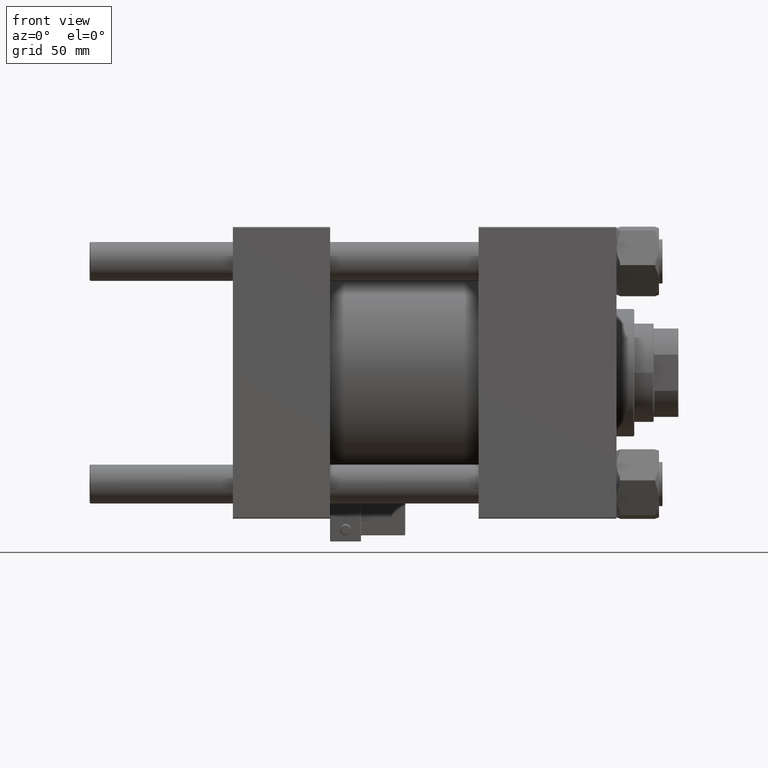
[diagram: clean part render]
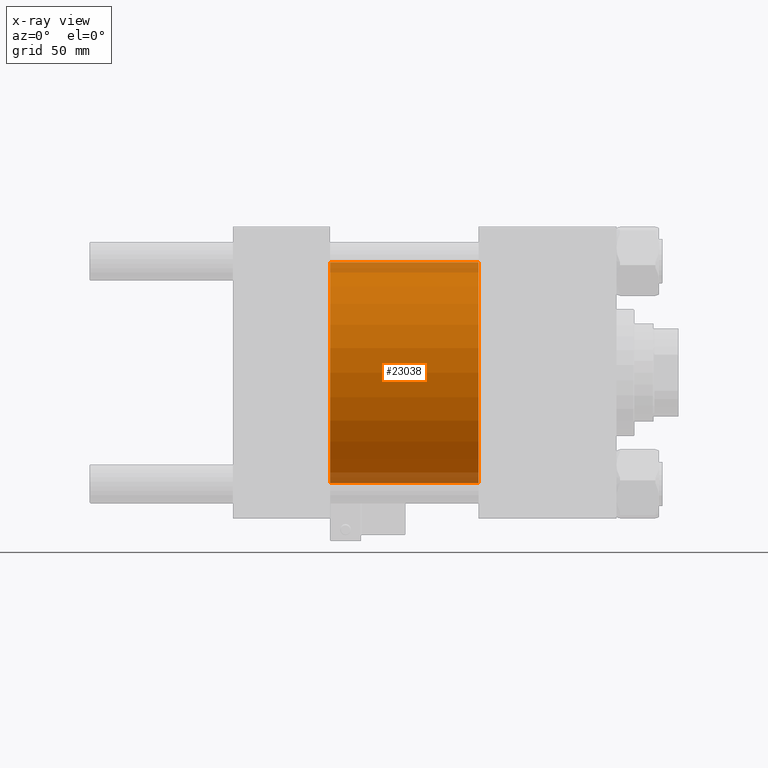
[diagram: x-ray — body ghosted, one internal face saturated and labeled with its STEP entity id]
A machine part, front view, then the same camera in x-ray: the body is ghosted and one INTERNAL B-rep face — a face not visible from any outside direction — is saturated and labeled: STEP entity #23038.
In plain terms, the highlighted cylindrical surface (partial cylindrical patch) has radius 62.5 mm, axis along (-1, -0, -0).
Its self-contained STEP definition (entity closure, byte-faithful):
#1889 = DIRECTION ( 'NONE',  ( -1.000000000000000000, -0.000000000000000000, -0.000000000000000000 ) ) ;
#3905 = ORIENTED_EDGE ( 'NONE', *, *, #10017, .T. ) ;
#5027 = VECTOR ( 'NONE', #49655, 1000.000000000000000 ) ;
#8617 = ORIENTED_EDGE ( 'NONE', *, *, #33627, .F. ) ;
#8686 = DIRECTION ( 'NONE',  ( 0.000000000000000000, 0.000000000000000000, -1.000000000000000000 ) ) ;
#9741 = LINE ( 'NONE', #37958, #5027 ) ;
#9912 = VERTEX_POINT ( 'NONE', #11488 ) ;
#10017 = EDGE_CURVE ( 'NONE', #32316, #34654, #18133, .T. ) ;
#10626 = ORIENTED_EDGE ( 'NONE', *, *, #27866, .F. ) ;
#11488 = CARTESIAN_POINT ( 'NONE',  ( 139.0000000000000000, 0.000000000000000000, 62.50000000000000000 ) ) ;
#13338 = AXIS2_PLACEMENT_3D ( 'NONE', #41152, #25756, #8686 ) ;
#13592 = CARTESIAN_POINT ( 'NONE',  ( 139.0000000000000000, 7.654042494670956226E-15, -62.50000000000000000 ) ) ;
#16583 = CARTESIAN_POINT ( 'NONE',  ( 139.0000000000000000, 0.000000000000000000, 0.000000000000000000 ) ) ;
#18133 = LINE ( 'NONE', #13592, #37518 ) ;
#19333 = CARTESIAN_POINT ( 'NONE',  ( 55.00000000000000000, 7.654042494670956226E-15, -62.50000000000000000 ) ) ;
#20596 = EDGE_LOOP ( 'NONE', ( #28636, #3905, #10626, #8617 ) ) ;
#21895 = CIRCLE ( 'NONE', #24452, 62.50000000000000000 ) ;
#22241 = DIRECTION ( 'NONE',  ( 1.000000000000000000, 0.000000000000000000, 0.000000000000000000 ) ) ;
#23038 = ADVANCED_FACE ( 'NONE', ( #48768 ), #35774, .F. ) ;
#23493 = AXIS2_PLACEMENT_3D ( 'NONE', #16583, #32295, #32818 ) ;
#24452 = AXIS2_PLACEMENT_3D ( 'NONE', #42434, #22241, #34449 ) ;
#25756 = DIRECTION ( 'NONE',  ( 1.000000000000000000, 0.000000000000000000, 0.000000000000000000 ) ) ;
#27866 = EDGE_CURVE ( 'NONE', #40108, #34654, #36285, .T. ) ;
#28636 = ORIENTED_EDGE ( 'NONE', *, *, #28696, .T. ) ;
#28696 = EDGE_CURVE ( 'NONE', #9912, #32316, #21895, .T. ) ;
#29571 = CARTESIAN_POINT ( 'NONE',  ( 139.0000000000000000, 7.654042494670956226E-15, -62.50000000000000000 ) ) ;
#32295 = DIRECTION ( 'NONE',  ( -1.000000000000000000, -0.000000000000000000, -0.000000000000000000 ) ) ;
#32316 = VERTEX_POINT ( 'NONE', #29571 ) ;
#32818 = DIRECTION ( 'NONE',  ( 0.000000000000000000, 0.000000000000000000, 1.000000000000000000 ) ) ;
#33627 = EDGE_CURVE ( 'NONE', #9912, #40108, #9741, .T. ) ;
#34449 = DIRECTION ( 'NONE',  ( 0.000000000000000000, 0.000000000000000000, -1.000000000000000000 ) ) ;
#34654 = VERTEX_POINT ( 'NONE', #19333 ) ;
#35774 = CYLINDRICAL_SURFACE ( 'NONE', #23493, 62.50000000000000000 ) ;
#36285 = CIRCLE ( 'NONE', #13338, 62.50000000000000000 ) ;
#37518 = VECTOR ( 'NONE', #1889, 1000.000000000000000 ) ;
#37958 = CARTESIAN_POINT ( 'NONE',  ( 139.0000000000000000, 0.000000000000000000, 62.50000000000000000 ) ) ;
#40108 = VERTEX_POINT ( 'NONE', #46335 ) ;
#41152 = CARTESIAN_POINT ( 'NONE',  ( 55.00000000000000000, 0.000000000000000000, 0.000000000000000000 ) ) ;
#42434 = CARTESIAN_POINT ( 'NONE',  ( 139.0000000000000000, 0.000000000000000000, 0.000000000000000000 ) ) ;
#46335 = CARTESIAN_POINT ( 'NONE',  ( 55.00000000000000000, 0.000000000000000000, 62.50000000000000000 ) ) ;
#48768 = FACE_OUTER_BOUND ( 'NONE', #20596, .T. ) ;
#49655 = DIRECTION ( 'NONE',  ( -1.000000000000000000, -0.000000000000000000, -0.000000000000000000 ) ) ;